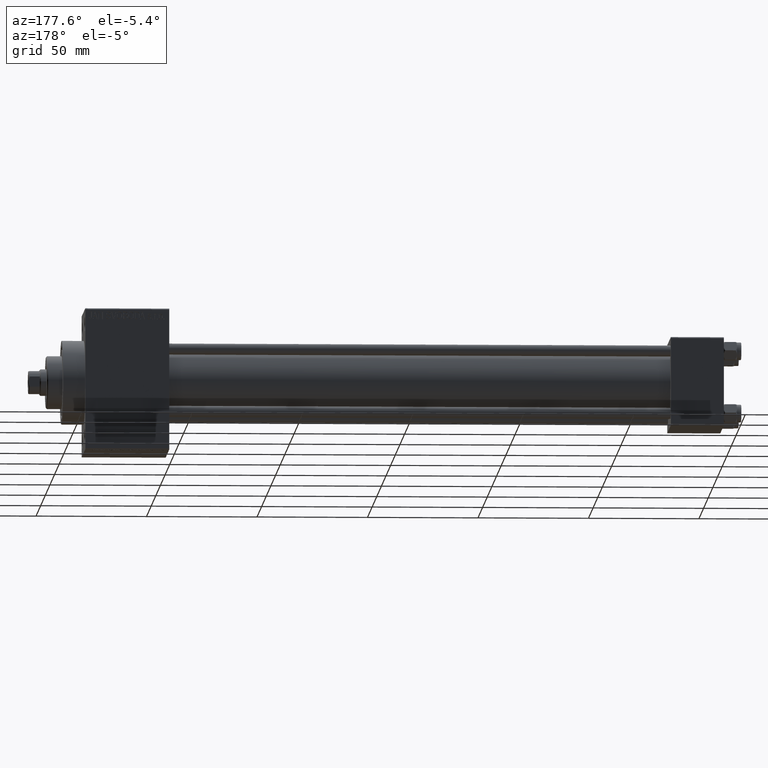
[diagram: clean part render]
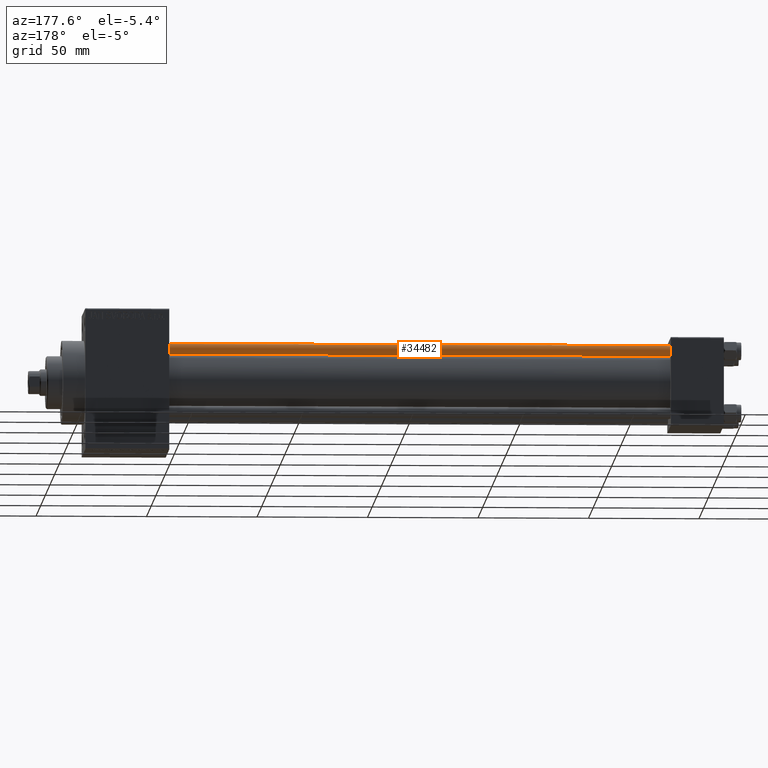
[diagram: same view with one face highlighted and labeled with its STEP entity id]
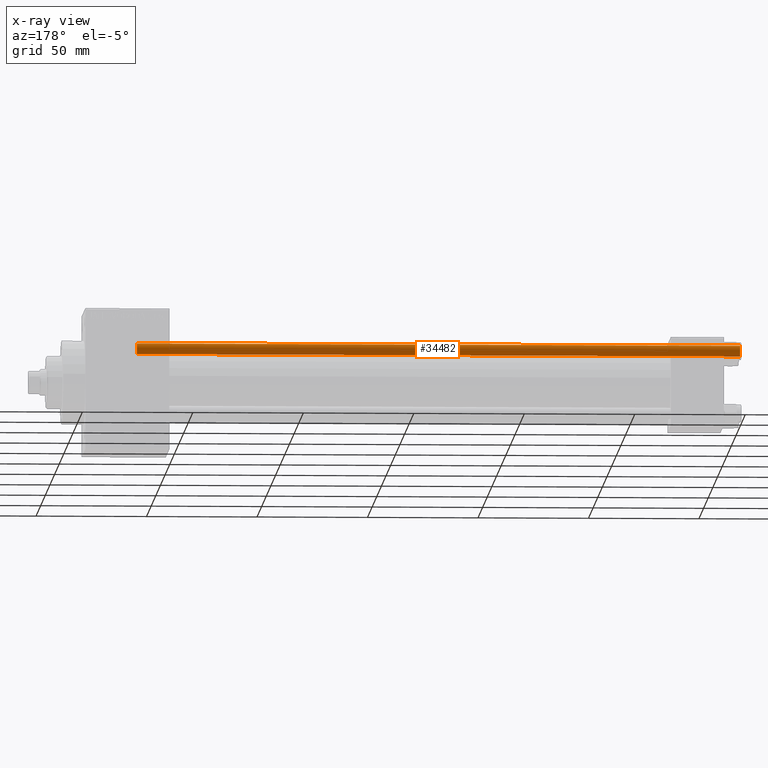
[diagram: x-ray of the same camera — body ghosted, the highlighted face saturated]
A machine part, auxiliary view. The second image highlights one B-rep face of the part: STEP entity #34482.
The next image is the same camera in x-ray: the body ghosted, the highlighted face saturated — about 0% of this face is hidden behind the body in this view.
In plain terms, the highlighted cylindrical surface (edge-blend (fillet) strip) has radius 2.5 mm, axis along (-1, -0, 0).
Its self-contained STEP definition (entity closure, byte-faithful):
#207 = ORIENTED_EDGE ( 'NONE', *, *, #44898, .T. ) ;
#2460 = EDGE_LOOP ( 'NONE', ( #207, #8523, #4399, #46216 ) ) ;
#3847 = CARTESIAN_POINT ( 'NONE',  ( 2.500000000000000000, 3.061616997868383141E-16, 273.5000000000000000 ) ) ;
#4399 = ORIENTED_EDGE ( 'NONE', *, *, #29537, .T. ) ;
#4455 = VERTEX_POINT ( 'NONE', #15446 ) ;
#8138 = DIRECTION ( 'NONE',  ( -0.000000000000000000, -0.000000000000000000, -1.000000000000000000 ) ) ;
#8523 = ORIENTED_EDGE ( 'NONE', *, *, #24954, .T. ) ;
#13988 = CYLINDRICAL_SURFACE ( 'NONE', #24760, 2.500000000000000000 ) ;
#15032 = DIRECTION ( 'NONE',  ( -0.000000000000000000, -0.000000000000000000, -1.000000000000000000 ) ) ;
#15446 = CARTESIAN_POINT ( 'NONE',  ( 2.500000000000000000, 3.061616997868383141E-16, 0.5000000000000004441 ) ) ;
#17107 = DIRECTION ( 'NONE',  ( -1.000000000000000000, 0.000000000000000000, 0.000000000000000000 ) ) ;
#18895 = CARTESIAN_POINT ( 'NONE',  ( -2.500000000000000000, 0.000000000000000000, 274.0000000000000000 ) ) ;
#19067 = CARTESIAN_POINT ( 'NONE',  ( -2.500000000000000000, 0.000000000000000000, 0.5000000000000004441 ) ) ;
#19416 = CIRCLE ( 'NONE', #30078, 2.500000000000000000 ) ;
#24760 = AXIS2_PLACEMENT_3D ( 'NONE', #42213, #35031, #17107 ) ;
#24940 = CIRCLE ( 'NONE', #33389, 2.500000000000000000 ) ;
#24954 = EDGE_CURVE ( 'NONE', #29436, #4455, #44668, .T. ) ;
#26037 = LINE ( 'NONE', #18895, #32538 ) ;
#27651 = VERTEX_POINT ( 'NONE', #19067 ) ;
#28085 = DIRECTION ( 'NONE',  ( 0.000000000000000000, 0.000000000000000000, -1.000000000000000000 ) ) ;
#29436 = VERTEX_POINT ( 'NONE', #3847 ) ;
#29537 = EDGE_CURVE ( 'NONE', #4455, #27651, #19416, .T. ) ;
#30078 = AXIS2_PLACEMENT_3D ( 'NONE', #31547, #30842, #34662 ) ;
#30719 = VECTOR ( 'NONE', #15032, 1000.000000000000000 ) ;
#30842 = DIRECTION ( 'NONE',  ( -0.000000000000000000, -0.000000000000000000, 1.000000000000000000 ) ) ;
#31152 = CARTESIAN_POINT ( 'NONE',  ( -2.500000000000000000, 0.000000000000000000, 273.5000000000000000 ) ) ;
#31547 = CARTESIAN_POINT ( 'NONE',  ( 0.000000000000000000, 0.000000000000000000, 0.5000000000000004441 ) ) ;
#31911 = DIRECTION ( 'NONE',  ( 1.000000000000000000, 0.000000000000000000, 0.000000000000000000 ) ) ;
#32538 = VECTOR ( 'NONE', #8138, 1000.000000000000000 ) ;
#33389 = AXIS2_PLACEMENT_3D ( 'NONE', #41983, #28085, #31911 ) ;
#34482 = ADVANCED_FACE ( 'NONE', ( #34793 ), #13988, .T. ) ;
#34662 = DIRECTION ( 'NONE',  ( 1.000000000000000000, 0.000000000000000000, 0.000000000000000000 ) ) ;
#34793 = FACE_OUTER_BOUND ( 'NONE', #2460, .T. ) ;
#35031 = DIRECTION ( 'NONE',  ( -0.000000000000000000, -0.000000000000000000, -1.000000000000000000 ) ) ;
#40140 = CARTESIAN_POINT ( 'NONE',  ( 2.500000000000000000, 3.061616997868383141E-16, 274.0000000000000000 ) ) ;
#41983 = CARTESIAN_POINT ( 'NONE',  ( 0.000000000000000000, 0.000000000000000000, 273.5000000000000000 ) ) ;
#42136 = EDGE_CURVE ( 'NONE', #45881, #27651, #26037, .T. ) ;
#42213 = CARTESIAN_POINT ( 'NONE',  ( 0.000000000000000000, 0.000000000000000000, 274.0000000000000000 ) ) ;
#44668 = LINE ( 'NONE', #40140, #30719 ) ;
#44898 = EDGE_CURVE ( 'NONE', #45881, #29436, #24940, .T. ) ;
#45881 = VERTEX_POINT ( 'NONE', #31152 ) ;
#46216 = ORIENTED_EDGE ( 'NONE', *, *, #42136, .F. ) ;